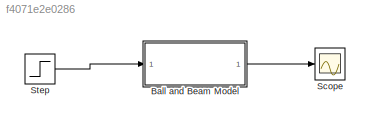
MODEL slx_f4071e2e0286
KIND model
CONFIG AbsTol = auto
CONFIG EnableMultiTasking = off
CONFIG FixedStep = auto
CONFIG MaxStep = auto
CONFIG MinStep = auto
CONFIG RelTol = 1e-3
CONFIG SampleTimeConstraint = Unconstrained
CONFIG Solver = VariableStepAuto
CONFIG SolverName = VariableStepAuto
CONFIG StartTime = 0.0
CONFIG StopTime = 10.0
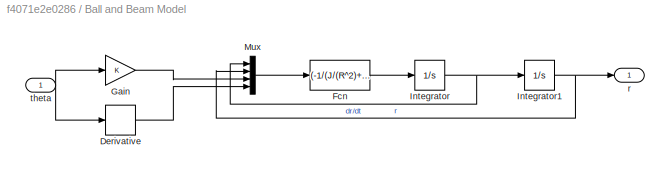
BLOCK [SubSystem] Ball and Beam Model
  Ports = [1, 1]
  RequestExecContextInheritance = off
  Variant = off
BLOCK [Derivative] Ball and Beam Model/Derivative
BLOCK [Fcn] Ball and Beam Model/Fcn
  Expr = (-1/(J/(R^2)+m))*(m*g*sin(u[3])-m*u[1]*(u[4])^2)
BLOCK [Gain] Ball and Beam Model/Gain
  OutDataTypeStr = Inherit: Inherit via internal rule
  ParamDataTypeStr = Inherit: Inherit via internal rule
  SaturateOnIntegerOverflow = off
BLOCK [Integrator] Ball and Beam Model/Integrator
  Ports = [1, 1]
BLOCK [Integrator] Ball and Beam Model/Integrator1
  Ports = [1, 1]
BLOCK [Mux] Ball and Beam Model/Mux
  DisplayOption = bar
  Ports = [4, 1]
BLOCK [Outport] Ball and Beam Model/r 
  IconDisplay = Port number
BLOCK [Inport] Ball and Beam Model/theta
  IconDisplay = Port number
BLOCK [Scope] Scope
  NumInputPorts = 1
  Ports = [1]
  ScopeSpecificationString = Simulink.scopes.TimeScopeBlockCfg('CurrentConfiguration', extmgr.ConfigurationSet(extmgr.Configuration('Core','General UI',true),extmgr.Configuration('Core','Source UI',true),extmgr.Configuration('Sources','WiredSimulink',true),extmgr.Configuration('Visuals','Time Domain',true),extmgr.Configuration('Tools','Plot Navigation',true),extmgr.Configuration('Tools','Measurements',true)),'Version','2017b'...<+1ch>
BLOCK [Step] Step
  SampleTime = 0
LINE Ball and Beam Model/Derivative:1 -> Ball and Beam Model/Mux:4
LINE Ball and Beam Model/Fcn:1 -> Ball and Beam Model/Integrator:1
LINE Ball and Beam Model/Gain:1 -> Ball and Beam Model/Mux:3
NET Ball and Beam Model/Integrator1:1 -> Ball and Beam Model/Mux:2, Ball and Beam Model/r :1
NET Ball and Beam Model/Integrator:1 -> Ball and Beam Model/Integrator1:1, Ball and Beam Model/Mux:1
LINE Ball and Beam Model/Mux:1 -> Ball and Beam Model/Fcn:1
NET Ball and Beam Model/theta:1 -> Ball and Beam Model/Derivative:1, Ball and Beam Model/Gain:1
LINE Ball and Beam Model:1 -> Scope:1
LINE Step:1 -> Ball and Beam Model:1
note: NET lines group one-source signal fan-out (src -> all destinations, sorted); 1:1 wires keep LINE
